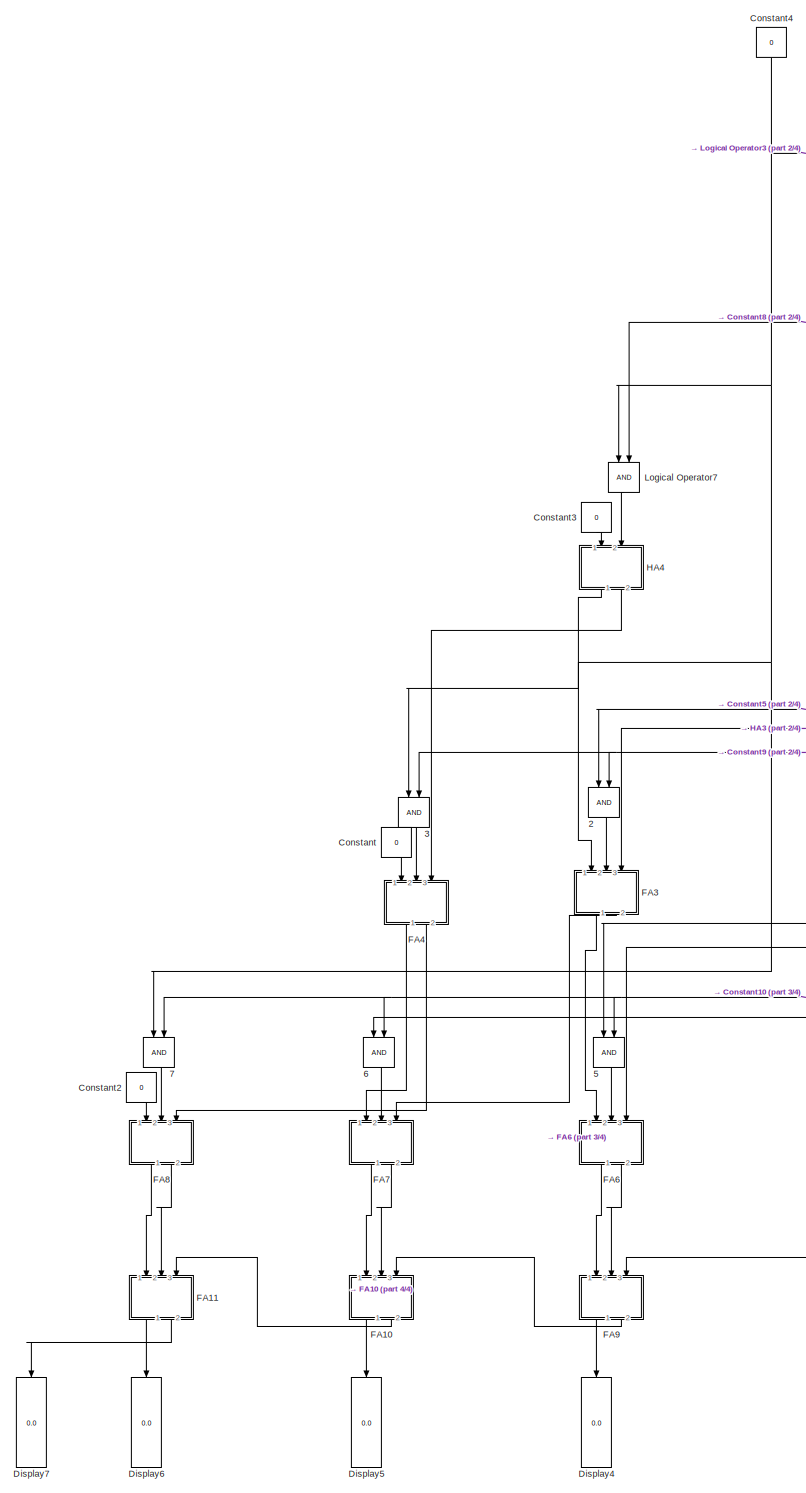
[diagram: root canvas - part 1/4, left side, full height]
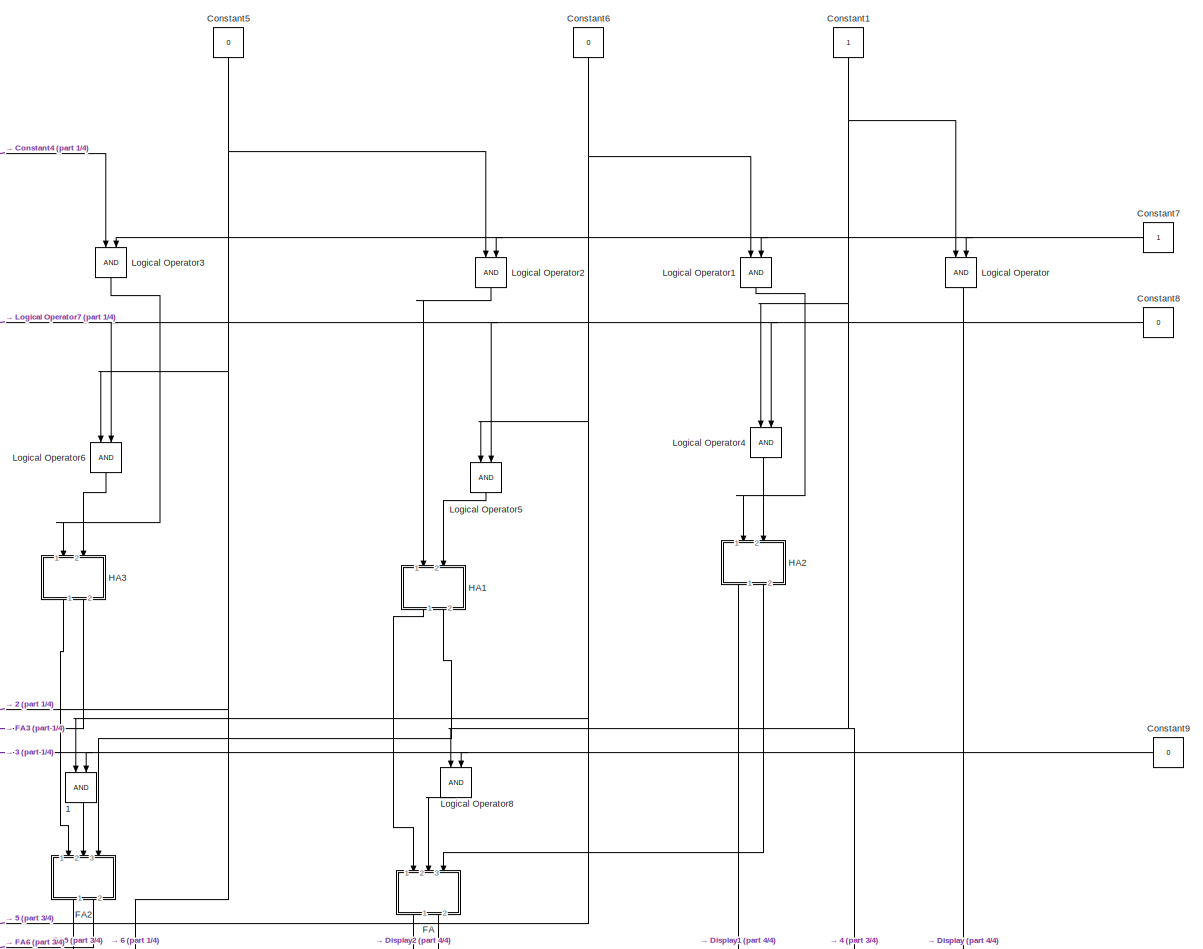
[diagram: root canvas - part 2/4, top right region]
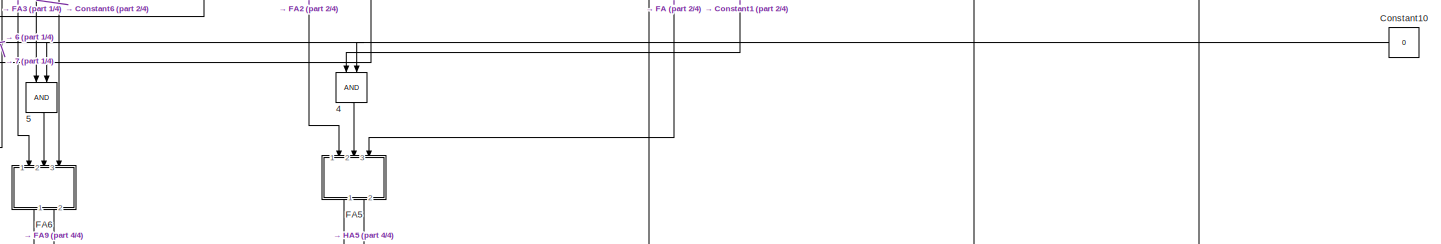
[diagram: root canvas - part 3/4, bottom center region]
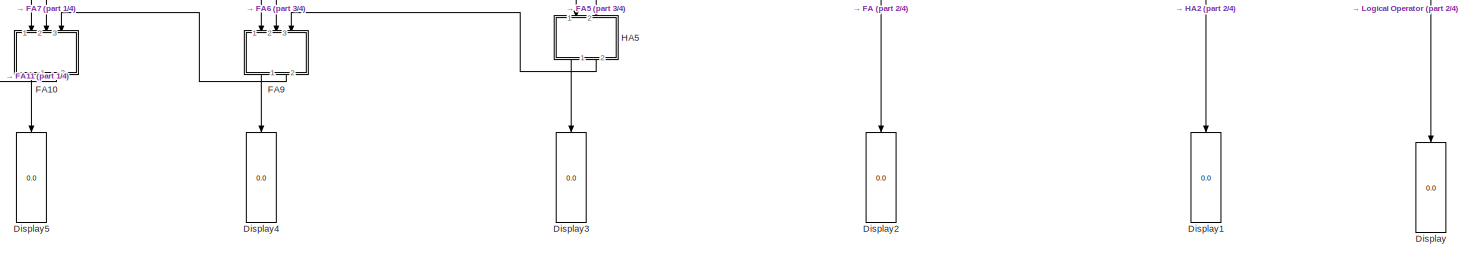
[diagram: root canvas - part 4/4, bottom center region]
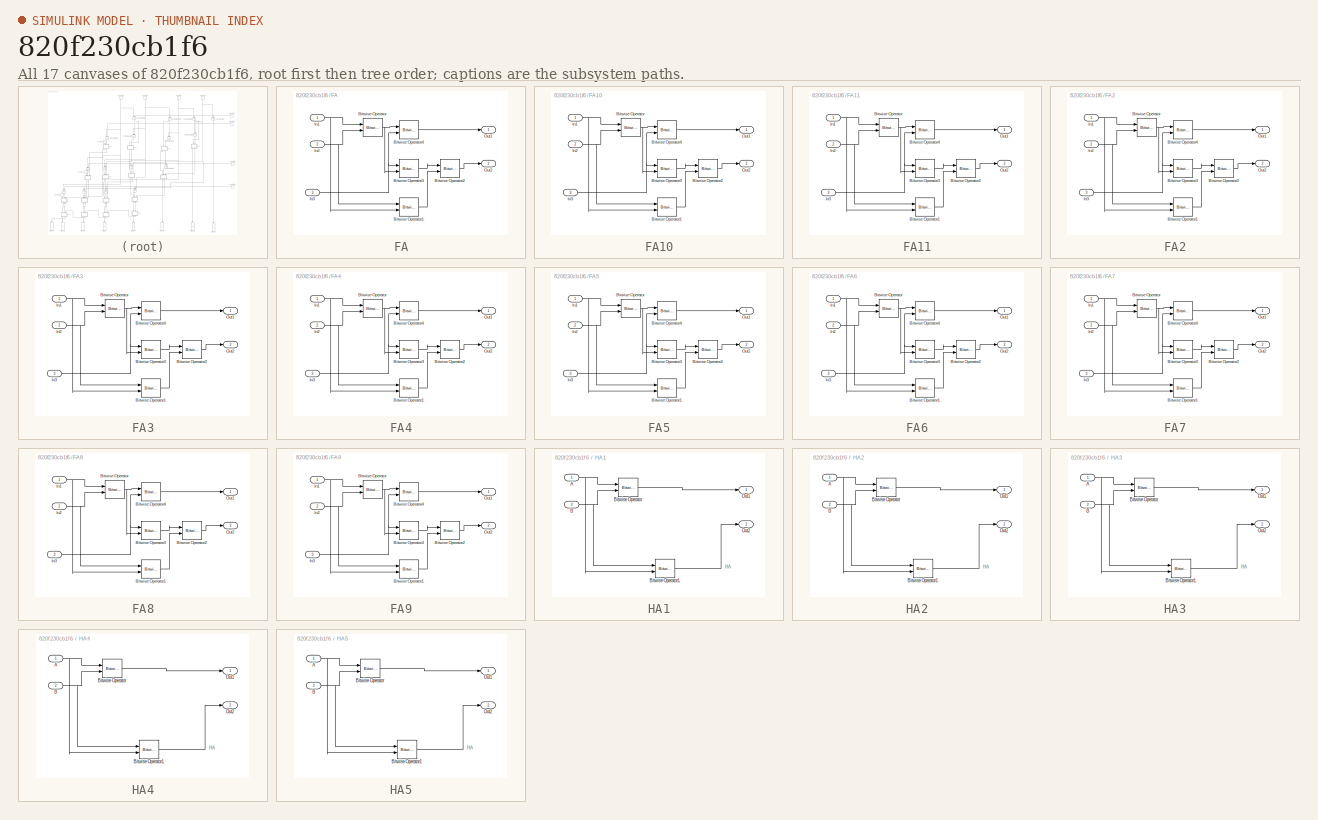
[diagram: thumbnail index - all 17 canvases of the model, root first then tree order]
MODEL slx_820f230cb1f6
KIND model
CONFIG AbsTol = auto
CONFIG FixedStep = auto
CONFIG MaxStep = auto
CONFIG MinStep = auto
CONFIG RelTol = 1e-3
CONFIG SampleTimeConstraint = Unconstrained
CONFIG Solver = ode45
CONFIG SolverMode = Auto
CONFIG SolverName = ode45
CONFIG StartTime = 0.0
CONFIG StopTime = 10.0
BLOCK [Logic]  1
  AllPortsSameDT = off
  OutDataTypeStr = boolean
  Ports = [2, 1]
BLOCK [Logic]  2
  AllPortsSameDT = off
  OutDataTypeStr = boolean
  Ports = [2, 1]
BLOCK [Logic]  3
  AllPortsSameDT = off
  OutDataTypeStr = boolean
  Ports = [2, 1]
BLOCK [Logic]  4
  AllPortsSameDT = off
  OutDataTypeStr = boolean
  Ports = [2, 1]
BLOCK [Logic]  5
  AllPortsSameDT = off
  OutDataTypeStr = boolean
  Ports = [2, 1]
BLOCK [Logic]  6
  AllPortsSameDT = off
  OutDataTypeStr = boolean
  Ports = [2, 1]
BLOCK [Logic]  7
  AllPortsSameDT = off
  OutDataTypeStr = boolean
  Ports = [2, 1]
BLOCK [Constant] Constant
  OutDataTypeStr = boolean
  Value = 0
BLOCK [Constant] Constant1
  OutDataTypeStr = boolean
BLOCK [Constant] Constant10
  OutDataTypeStr = boolean
  Value = 0
BLOCK [Constant] Constant2
  OutDataTypeStr = boolean
  Value = 0
BLOCK [Constant] Constant3
  OutDataTypeStr = boolean
  Value = 0
BLOCK [Constant] Constant4
  OutDataTypeStr = boolean
  Value = 0
BLOCK [Constant] Constant5
  OutDataTypeStr = boolean
  Value = 0
BLOCK [Constant] Constant6
  OutDataTypeStr = boolean
  Value = 0
BLOCK [Constant] Constant7
  OutDataTypeStr = boolean
BLOCK [Constant] Constant8
  OutDataTypeStr = boolean
  Value = 0
BLOCK [Constant] Constant9
  OutDataTypeStr = boolean
  Value = 0
BLOCK [Display] Display
  Decimation = 1
  Ports = [1]
BLOCK [Display] Display1
  Decimation = 1
  Ports = [1]
BLOCK [Display] Display2
  Decimation = 1
  Ports = [1]
BLOCK [Display] Display3
  Decimation = 1
  Ports = [1]
BLOCK [Display] Display4
  Decimation = 1
  Ports = [1]
BLOCK [Display] Display5
  Decimation = 1
  Ports = [1]
BLOCK [Display] Display6
  Decimation = 1
  Ports = [1]
BLOCK [Display] Display7
  Decimation = 1
  Ports = [1]
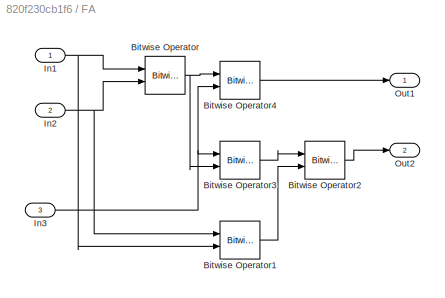
BLOCK [SubSystem] FA
  Ports = [3, 2]
  RequestExecContextInheritance = off
BLOCK [Reference] FA/Bitwise Operator  REF=simulink/Logic and Bit
Operations/Bitwise
Operator
  BitMask = bin2dec('11011001')
  BitMaskRealWorld = Stored Integer
  NumInputPorts = 2
  Ports = [2, 1]
  SourceBlock = simulink/Logic and Bit\nOperations/Bitwise\nOperator
  SourceType = Bitwise Operator
  UseBitMask = off
  logicop = XOR
BLOCK [Reference] FA/Bitwise Operator1  REF=simulink/Logic and Bit
Operations/Bitwise
Operator
  BitMask = bin2dec('11011001')
  BitMaskRealWorld = Stored Integer
  NumInputPorts = 2
  Ports = [2, 1]
  SourceBlock = simulink/Logic and Bit\nOperations/Bitwise\nOperator
  SourceType = Bitwise Operator
  UseBitMask = off
  logicop = AND
BLOCK [Reference] FA/Bitwise Operator2  REF=simulink/Logic and Bit
Operations/Bitwise
Operator
  BitMask = bin2dec('11011001')
  BitMaskRealWorld = Stored Integer
  NumInputPorts = 2
  Ports = [2, 1]
  SourceBlock = simulink/Logic and Bit\nOperations/Bitwise\nOperator
  SourceType = Bitwise Operator
  UseBitMask = off
  logicop = OR
BLOCK [Reference] FA/Bitwise Operator3  REF=simulink/Logic and Bit
Operations/Bitwise
Operator
  BitMask = bin2dec('11011001')
  BitMaskRealWorld = Stored Integer
  NumInputPorts = 2
  Ports = [2, 1]
  SourceBlock = simulink/Logic and Bit\nOperations/Bitwise\nOperator
  SourceType = Bitwise Operator
  UseBitMask = off
  logicop = AND
BLOCK [Reference] FA/Bitwise Operator4  REF=simulink/Logic and Bit
Operations/Bitwise
Operator
  BitMask = bin2dec('11011001')
  BitMaskRealWorld = Stored Integer
  NumInputPorts = 2
  Ports = [2, 1]
  SourceBlock = simulink/Logic and Bit\nOperations/Bitwise\nOperator
  SourceType = Bitwise Operator
  UseBitMask = off
  logicop = XOR
BLOCK [Inport] FA/In1
  IconDisplay = Port number
BLOCK [Inport] FA/In2
  IconDisplay = Port number
  Port = 2
BLOCK [Inport] FA/In3
  IconDisplay = Port number
  Port = 3
BLOCK [Outport] FA/Out1
  IconDisplay = Port number
BLOCK [Outport] FA/Out2
  IconDisplay = Port number
  Port = 2
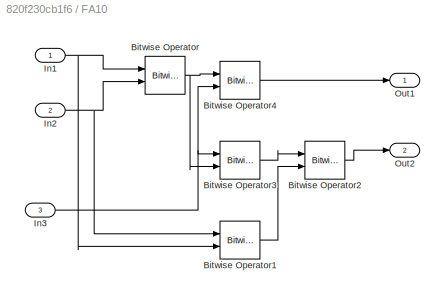
BLOCK [SubSystem] FA10
  Ports = [3, 2]
  RequestExecContextInheritance = off
BLOCK [Reference] FA10/Bitwise Operator  REF=simulink/Logic and Bit
Operations/Bitwise
Operator
  BitMask = bin2dec('11011001')
  BitMaskRealWorld = Stored Integer
  NumInputPorts = 2
  Ports = [2, 1]
  SourceBlock = simulink/Logic and Bit\nOperations/Bitwise\nOperator
  SourceType = Bitwise Operator
  UseBitMask = off
  logicop = XOR
BLOCK [Reference] FA10/Bitwise Operator1  REF=simulink/Logic and Bit
Operations/Bitwise
Operator
  BitMask = bin2dec('11011001')
  BitMaskRealWorld = Stored Integer
  NumInputPorts = 2
  Ports = [2, 1]
  SourceBlock = simulink/Logic and Bit\nOperations/Bitwise\nOperator
  SourceType = Bitwise Operator
  UseBitMask = off
  logicop = AND
BLOCK [Reference] FA10/Bitwise Operator2  REF=simulink/Logic and Bit
Operations/Bitwise
Operator
  BitMask = bin2dec('11011001')
  BitMaskRealWorld = Stored Integer
  NumInputPorts = 2
  Ports = [2, 1]
  SourceBlock = simulink/Logic and Bit\nOperations/Bitwise\nOperator
  SourceType = Bitwise Operator
  UseBitMask = off
  logicop = OR
BLOCK [Reference] FA10/Bitwise Operator3  REF=simulink/Logic and Bit
Operations/Bitwise
Operator
  BitMask = bin2dec('11011001')
  BitMaskRealWorld = Stored Integer
  NumInputPorts = 2
  Ports = [2, 1]
  SourceBlock = simulink/Logic and Bit\nOperations/Bitwise\nOperator
  SourceType = Bitwise Operator
  UseBitMask = off
  logicop = AND
BLOCK [Reference] FA10/Bitwise Operator4  REF=simulink/Logic and Bit
Operations/Bitwise
Operator
  BitMask = bin2dec('11011001')
  BitMaskRealWorld = Stored Integer
  NumInputPorts = 2
  Ports = [2, 1]
  SourceBlock = simulink/Logic and Bit\nOperations/Bitwise\nOperator
  SourceType = Bitwise Operator
  UseBitMask = off
  logicop = XOR
BLOCK [Inport] FA10/In1
  IconDisplay = Port number
BLOCK [Inport] FA10/In2
  IconDisplay = Port number
  Port = 2
BLOCK [Inport] FA10/In3
  IconDisplay = Port number
  Port = 3
BLOCK [Outport] FA10/Out1
  IconDisplay = Port number
BLOCK [Outport] FA10/Out2
  IconDisplay = Port number
  Port = 2
BLOCK [SubSystem] FA11
  Ports = [3, 2]
  RequestExecContextInheritance = off
BLOCK [Reference] FA11/Bitwise Operator  REF=simulink/Logic and Bit
Operations/Bitwise
Operator
  BitMask = bin2dec('11011001')
  BitMaskRealWorld = Stored Integer
  NumInputPorts = 2
  Ports = [2, 1]
  SourceBlock = simulink/Logic and Bit\nOperations/Bitwise\nOperator
  SourceType = Bitwise Operator
  UseBitMask = off
  logicop = XOR
BLOCK [Reference] FA11/Bitwise Operator1  REF=simulink/Logic and Bit
Operations/Bitwise
Operator
  BitMask = bin2dec('11011001')
  BitMaskRealWorld = Stored Integer
  NumInputPorts = 2
  Ports = [2, 1]
  SourceBlock = simulink/Logic and Bit\nOperations/Bitwise\nOperator
  SourceType = Bitwise Operator
  UseBitMask = off
  logicop = AND
BLOCK [Reference] FA11/Bitwise Operator2  REF=simulink/Logic and Bit
Operations/Bitwise
Operator
  BitMask = bin2dec('11011001')
  BitMaskRealWorld = Stored Integer
  NumInputPorts = 2
  Ports = [2, 1]
  SourceBlock = simulink/Logic and Bit\nOperations/Bitwise\nOperator
  SourceType = Bitwise Operator
  UseBitMask = off
  logicop = OR
BLOCK [Reference] FA11/Bitwise Operator3  REF=simulink/Logic and Bit
Operations/Bitwise
Operator
  BitMask = bin2dec('11011001')
  BitMaskRealWorld = Stored Integer
  NumInputPorts = 2
  Ports = [2, 1]
  SourceBlock = simulink/Logic and Bit\nOperations/Bitwise\nOperator
  SourceType = Bitwise Operator
  UseBitMask = off
  logicop = AND
BLOCK [Reference] FA11/Bitwise Operator4  REF=simulink/Logic and Bit
Operations/Bitwise
Operator
  BitMask = bin2dec('11011001')
  BitMaskRealWorld = Stored Integer
  NumInputPorts = 2
  Ports = [2, 1]
  SourceBlock = simulink/Logic and Bit\nOperations/Bitwise\nOperator
  SourceType = Bitwise Operator
  UseBitMask = off
  logicop = XOR
BLOCK [Inport] FA11/In1
  IconDisplay = Port number
BLOCK [Inport] FA11/In2
  IconDisplay = Port number
  Port = 2
BLOCK [Inport] FA11/In3
  IconDisplay = Port number
  Port = 3
BLOCK [Outport] FA11/Out1
  IconDisplay = Port number
BLOCK [Outport] FA11/Out2
  IconDisplay = Port number
  Port = 2
BLOCK [SubSystem] FA2
  Ports = [3, 2]
  RequestExecContextInheritance = off
BLOCK [Reference] FA2/Bitwise Operator  REF=simulink/Logic and Bit
Operations/Bitwise
Operator
  BitMask = bin2dec('11011001')
  BitMaskRealWorld = Stored Integer
  NumInputPorts = 2
  Ports = [2, 1]
  SourceBlock = simulink/Logic and Bit\nOperations/Bitwise\nOperator
  SourceType = Bitwise Operator
  UseBitMask = off
  logicop = XOR
BLOCK [Reference] FA2/Bitwise Operator1  REF=simulink/Logic and Bit
Operations/Bitwise
Operator
  BitMask = bin2dec('11011001')
  BitMaskRealWorld = Stored Integer
  NumInputPorts = 2
  Ports = [2, 1]
  SourceBlock = simulink/Logic and Bit\nOperations/Bitwise\nOperator
  SourceType = Bitwise Operator
  UseBitMask = off
  logicop = AND
BLOCK [Reference] FA2/Bitwise Operator2  REF=simulink/Logic and Bit
Operations/Bitwise
Operator
  BitMask = bin2dec('11011001')
  BitMaskRealWorld = Stored Integer
  NumInputPorts = 2
  Ports = [2, 1]
  SourceBlock = simulink/Logic and Bit\nOperations/Bitwise\nOperator
  SourceType = Bitwise Operator
  UseBitMask = off
  logicop = OR
BLOCK [Reference] FA2/Bitwise Operator3  REF=simulink/Logic and Bit
Operations/Bitwise
Operator
  BitMask = bin2dec('11011001')
  BitMaskRealWorld = Stored Integer
  NumInputPorts = 2
  Ports = [2, 1]
  SourceBlock = simulink/Logic and Bit\nOperations/Bitwise\nOperator
  SourceType = Bitwise Operator
  UseBitMask = off
  logicop = AND
BLOCK [Reference] FA2/Bitwise Operator4  REF=simulink/Logic and Bit
Operations/Bitwise
Operator
  BitMask = bin2dec('11011001')
  BitMaskRealWorld = Stored Integer
  NumInputPorts = 2
  Ports = [2, 1]
  SourceBlock = simulink/Logic and Bit\nOperations/Bitwise\nOperator
  SourceType = Bitwise Operator
  UseBitMask = off
  logicop = XOR
BLOCK [Inport] FA2/In1
  IconDisplay = Port number
BLOCK [Inport] FA2/In2
  IconDisplay = Port number
  Port = 2
BLOCK [Inport] FA2/In3
  IconDisplay = Port number
  Port = 3
BLOCK [Outport] FA2/Out1
  IconDisplay = Port number
BLOCK [Outport] FA2/Out2
  IconDisplay = Port number
  Port = 2
BLOCK [SubSystem] FA3
  Ports = [3, 2]
  RequestExecContextInheritance = off
BLOCK [Reference] FA3/Bitwise Operator  REF=simulink/Logic and Bit
Operations/Bitwise
Operator
  BitMask = bin2dec('11011001')
  BitMaskRealWorld = Stored Integer
  NumInputPorts = 2
  Ports = [2, 1]
  SourceBlock = simulink/Logic and Bit\nOperations/Bitwise\nOperator
  SourceType = Bitwise Operator
  UseBitMask = off
  logicop = XOR
BLOCK [Reference] FA3/Bitwise Operator1  REF=simulink/Logic and Bit
Operations/Bitwise
Operator
  BitMask = bin2dec('11011001')
  BitMaskRealWorld = Stored Integer
  NumInputPorts = 2
  Ports = [2, 1]
  SourceBlock = simulink/Logic and Bit\nOperations/Bitwise\nOperator
  SourceType = Bitwise Operator
  UseBitMask = off
  logicop = AND
BLOCK [Reference] FA3/Bitwise Operator2  REF=simulink/Logic and Bit
Operations/Bitwise
Operator
  BitMask = bin2dec('11011001')
  BitMaskRealWorld = Stored Integer
  NumInputPorts = 2
  Ports = [2, 1]
  SourceBlock = simulink/Logic and Bit\nOperations/Bitwise\nOperator
  SourceType = Bitwise Operator
  UseBitMask = off
  logicop = OR
BLOCK [Reference] FA3/Bitwise Operator3  REF=simulink/Logic and Bit
Operations/Bitwise
Operator
  BitMask = bin2dec('11011001')
  BitMaskRealWorld = Stored Integer
  NumInputPorts = 2
  Ports = [2, 1]
  SourceBlock = simulink/Logic and Bit\nOperations/Bitwise\nOperator
  SourceType = Bitwise Operator
  UseBitMask = off
  logicop = AND
BLOCK [Reference] FA3/Bitwise Operator4  REF=simulink/Logic and Bit
Operations/Bitwise
Operator
  BitMask = bin2dec('11011001')
  BitMaskRealWorld = Stored Integer
  NumInputPorts = 2
  Ports = [2, 1]
  SourceBlock = simulink/Logic and Bit\nOperations/Bitwise\nOperator
  SourceType = Bitwise Operator
  UseBitMask = off
  logicop = XOR
BLOCK [Inport] FA3/In1
  IconDisplay = Port number
BLOCK [Inport] FA3/In2
  IconDisplay = Port number
  Port = 2
BLOCK [Inport] FA3/In3
  IconDisplay = Port number
  Port = 3
BLOCK [Outport] FA3/Out1
  IconDisplay = Port number
BLOCK [Outport] FA3/Out2
  IconDisplay = Port number
  Port = 2
BLOCK [SubSystem] FA4
  Ports = [3, 2]
  RequestExecContextInheritance = off
BLOCK [Reference] FA4/Bitwise Operator  REF=simulink/Logic and Bit
Operations/Bitwise
Operator
  BitMask = bin2dec('11011001')
  BitMaskRealWorld = Stored Integer
  NumInputPorts = 2
  Ports = [2, 1]
  SourceBlock = simulink/Logic and Bit\nOperations/Bitwise\nOperator
  SourceType = Bitwise Operator
  UseBitMask = off
  logicop = XOR
BLOCK [Reference] FA4/Bitwise Operator1  REF=simulink/Logic and Bit
Operations/Bitwise
Operator
  BitMask = bin2dec('11011001')
  BitMaskRealWorld = Stored Integer
  NumInputPorts = 2
  Ports = [2, 1]
  SourceBlock = simulink/Logic and Bit\nOperations/Bitwise\nOperator
  SourceType = Bitwise Operator
  UseBitMask = off
  logicop = AND
BLOCK [Reference] FA4/Bitwise Operator2  REF=simulink/Logic and Bit
Operations/Bitwise
Operator
  BitMask = bin2dec('11011001')
  BitMaskRealWorld = Stored Integer
  NumInputPorts = 2
  Ports = [2, 1]
  SourceBlock = simulink/Logic and Bit\nOperations/Bitwise\nOperator
  SourceType = Bitwise Operator
  UseBitMask = off
  logicop = OR
BLOCK [Reference] FA4/Bitwise Operator3  REF=simulink/Logic and Bit
Operations/Bitwise
Operator
  BitMask = bin2dec('11011001')
  BitMaskRealWorld = Stored Integer
  NumInputPorts = 2
  Ports = [2, 1]
  SourceBlock = simulink/Logic and Bit\nOperations/Bitwise\nOperator
  SourceType = Bitwise Operator
  UseBitMask = off
  logicop = AND
BLOCK [Reference] FA4/Bitwise Operator4  REF=simulink/Logic and Bit
Operations/Bitwise
Operator
  BitMask = bin2dec('11011001')
  BitMaskRealWorld = Stored Integer
  NumInputPorts = 2
  Ports = [2, 1]
  SourceBlock = simulink/Logic and Bit\nOperations/Bitwise\nOperator
  SourceType = Bitwise Operator
  UseBitMask = off
  logicop = XOR
BLOCK [Inport] FA4/In1
  IconDisplay = Port number
BLOCK [Inport] FA4/In2
  IconDisplay = Port number
  Port = 2
BLOCK [Inport] FA4/In3
  IconDisplay = Port number
  Port = 3
BLOCK [Outport] FA4/Out1
  IconDisplay = Port number
BLOCK [Outport] FA4/Out2
  IconDisplay = Port number
  Port = 2
BLOCK [SubSystem] FA5
  Ports = [3, 2]
  RequestExecContextInheritance = off
BLOCK [Reference] FA5/Bitwise Operator  REF=simulink/Logic and Bit
Operations/Bitwise
Operator
  BitMask = bin2dec('11011001')
  BitMaskRealWorld = Stored Integer
  NumInputPorts = 2
  Ports = [2, 1]
  SourceBlock = simulink/Logic and Bit\nOperations/Bitwise\nOperator
  SourceType = Bitwise Operator
  UseBitMask = off
  logicop = XOR
BLOCK [Reference] FA5/Bitwise Operator1  REF=simulink/Logic and Bit
Operations/Bitwise
Operator
  BitMask = bin2dec('11011001')
  BitMaskRealWorld = Stored Integer
  NumInputPorts = 2
  Ports = [2, 1]
  SourceBlock = simulink/Logic and Bit\nOperations/Bitwise\nOperator
  SourceType = Bitwise Operator
  UseBitMask = off
  logicop = AND
BLOCK [Reference] FA5/Bitwise Operator2  REF=simulink/Logic and Bit
Operations/Bitwise
Operator
  BitMask = bin2dec('11011001')
  BitMaskRealWorld = Stored Integer
  NumInputPorts = 2
  Ports = [2, 1]
  SourceBlock = simulink/Logic and Bit\nOperations/Bitwise\nOperator
  SourceType = Bitwise Operator
  UseBitMask = off
  logicop = OR
BLOCK [Reference] FA5/Bitwise Operator3  REF=simulink/Logic and Bit
Operations/Bitwise
Operator
  BitMask = bin2dec('11011001')
  BitMaskRealWorld = Stored Integer
  NumInputPorts = 2
  Ports = [2, 1]
  SourceBlock = simulink/Logic and Bit\nOperations/Bitwise\nOperator
  SourceType = Bitwise Operator
  UseBitMask = off
  logicop = AND
BLOCK [Reference] FA5/Bitwise Operator4  REF=simulink/Logic and Bit
Operations/Bitwise
Operator
  BitMask = bin2dec('11011001')
  BitMaskRealWorld = Stored Integer
  NumInputPorts = 2
  Ports = [2, 1]
  SourceBlock = simulink/Logic and Bit\nOperations/Bitwise\nOperator
  SourceType = Bitwise Operator
  UseBitMask = off
  logicop = XOR
BLOCK [Inport] FA5/In1
  IconDisplay = Port number
BLOCK [Inport] FA5/In2
  IconDisplay = Port number
  Port = 2
BLOCK [Inport] FA5/In3
  IconDisplay = Port number
  Port = 3
BLOCK [Outport] FA5/Out1
  IconDisplay = Port number
BLOCK [Outport] FA5/Out2
  IconDisplay = Port number
  Port = 2
BLOCK [SubSystem] FA6
  Ports = [3, 2]
  RequestExecContextInheritance = off
BLOCK [Reference] FA6/Bitwise Operator  REF=simulink/Logic and Bit
Operations/Bitwise
Operator
  BitMask = bin2dec('11011001')
  BitMaskRealWorld = Stored Integer
  NumInputPorts = 2
  Ports = [2, 1]
  SourceBlock = simulink/Logic and Bit\nOperations/Bitwise\nOperator
  SourceType = Bitwise Operator
  UseBitMask = off
  logicop = XOR
BLOCK [Reference] FA6/Bitwise Operator1  REF=simulink/Logic and Bit
Operations/Bitwise
Operator
  BitMask = bin2dec('11011001')
  BitMaskRealWorld = Stored Integer
  NumInputPorts = 2
  Ports = [2, 1]
  SourceBlock = simulink/Logic and Bit\nOperations/Bitwise\nOperator
  SourceType = Bitwise Operator
  UseBitMask = off
  logicop = AND
BLOCK [Reference] FA6/Bitwise Operator2  REF=simulink/Logic and Bit
Operations/Bitwise
Operator
  BitMask = bin2dec('11011001')
  BitMaskRealWorld = Stored Integer
  NumInputPorts = 2
  Ports = [2, 1]
  SourceBlock = simulink/Logic and Bit\nOperations/Bitwise\nOperator
  SourceType = Bitwise Operator
  UseBitMask = off
  logicop = OR
BLOCK [Reference] FA6/Bitwise Operator3  REF=simulink/Logic and Bit
Operations/Bitwise
Operator
  BitMask = bin2dec('11011001')
  BitMaskRealWorld = Stored Integer
  NumInputPorts = 2
  Ports = [2, 1]
  SourceBlock = simulink/Logic and Bit\nOperations/Bitwise\nOperator
  SourceType = Bitwise Operator
  UseBitMask = off
  logicop = AND
BLOCK [Reference] FA6/Bitwise Operator4  REF=simulink/Logic and Bit
Operations/Bitwise
Operator
  BitMask = bin2dec('11011001')
  BitMaskRealWorld = Stored Integer
  NumInputPorts = 2
  Ports = [2, 1]
  SourceBlock = simulink/Logic and Bit\nOperations/Bitwise\nOperator
  SourceType = Bitwise Operator
  UseBitMask = off
  logicop = XOR
BLOCK [Inport] FA6/In1
  IconDisplay = Port number
BLOCK [Inport] FA6/In2
  IconDisplay = Port number
  Port = 2
BLOCK [Inport] FA6/In3
  IconDisplay = Port number
  Port = 3
BLOCK [Outport] FA6/Out1
  IconDisplay = Port number
BLOCK [Outport] FA6/Out2
  IconDisplay = Port number
  Port = 2
BLOCK [SubSystem] FA7
  Ports = [3, 2]
  RequestExecContextInheritance = off
BLOCK [Reference] FA7/Bitwise Operator  REF=simulink/Logic and Bit
Operations/Bitwise
Operator
  BitMask = bin2dec('11011001')
  BitMaskRealWorld = Stored Integer
  NumInputPorts = 2
  Ports = [2, 1]
  SourceBlock = simulink/Logic and Bit\nOperations/Bitwise\nOperator
  SourceType = Bitwise Operator
  UseBitMask = off
  logicop = XOR
BLOCK [Reference] FA7/Bitwise Operator1  REF=simulink/Logic and Bit
Operations/Bitwise
Operator
  BitMask = bin2dec('11011001')
  BitMaskRealWorld = Stored Integer
  NumInputPorts = 2
  Ports = [2, 1]
  SourceBlock = simulink/Logic and Bit\nOperations/Bitwise\nOperator
  SourceType = Bitwise Operator
  UseBitMask = off
  logicop = AND
BLOCK [Reference] FA7/Bitwise Operator2  REF=simulink/Logic and Bit
Operations/Bitwise
Operator
  BitMask = bin2dec('11011001')
  BitMaskRealWorld = Stored Integer
  NumInputPorts = 2
  Ports = [2, 1]
  SourceBlock = simulink/Logic and Bit\nOperations/Bitwise\nOperator
  SourceType = Bitwise Operator
  UseBitMask = off
  logicop = OR
BLOCK [Reference] FA7/Bitwise Operator3  REF=simulink/Logic and Bit
Operations/Bitwise
Operator
  BitMask = bin2dec('11011001')
  BitMaskRealWorld = Stored Integer
  NumInputPorts = 2
  Ports = [2, 1]
  SourceBlock = simulink/Logic and Bit\nOperations/Bitwise\nOperator
  SourceType = Bitwise Operator
  UseBitMask = off
  logicop = AND
BLOCK [Reference] FA7/Bitwise Operator4  REF=simulink/Logic and Bit
Operations/Bitwise
Operator
  BitMask = bin2dec('11011001')
  BitMaskRealWorld = Stored Integer
  NumInputPorts = 2
  Ports = [2, 1]
  SourceBlock = simulink/Logic and Bit\nOperations/Bitwise\nOperator
  SourceType = Bitwise Operator
  UseBitMask = off
  logicop = XOR
BLOCK [Inport] FA7/In1
  IconDisplay = Port number
BLOCK [Inport] FA7/In2
  IconDisplay = Port number
  Port = 2
BLOCK [Inport] FA7/In3
  IconDisplay = Port number
  Port = 3
BLOCK [Outport] FA7/Out1
  IconDisplay = Port number
BLOCK [Outport] FA7/Out2
  IconDisplay = Port number
  Port = 2
BLOCK [SubSystem] FA8
  Ports = [3, 2]
  RequestExecContextInheritance = off
BLOCK [Reference] FA8/Bitwise Operator  REF=simulink/Logic and Bit
Operations/Bitwise
Operator
  BitMask = bin2dec('11011001')
  BitMaskRealWorld = Stored Integer
  NumInputPorts = 2
  Ports = [2, 1]
  SourceBlock = simulink/Logic and Bit\nOperations/Bitwise\nOperator
  SourceType = Bitwise Operator
  UseBitMask = off
  logicop = XOR
BLOCK [Reference] FA8/Bitwise Operator1  REF=simulink/Logic and Bit
Operations/Bitwise
Operator
  BitMask = bin2dec('11011001')
  BitMaskRealWorld = Stored Integer
  NumInputPorts = 2
  Ports = [2, 1]
  SourceBlock = simulink/Logic and Bit\nOperations/Bitwise\nOperator
  SourceType = Bitwise Operator
  UseBitMask = off
  logicop = AND
BLOCK [Reference] FA8/Bitwise Operator2  REF=simulink/Logic and Bit
Operations/Bitwise
Operator
  BitMask = bin2dec('11011001')
  BitMaskRealWorld = Stored Integer
  NumInputPorts = 2
  Ports = [2, 1]
  SourceBlock = simulink/Logic and Bit\nOperations/Bitwise\nOperator
  SourceType = Bitwise Operator
  UseBitMask = off
  logicop = OR
BLOCK [Reference] FA8/Bitwise Operator3  REF=simulink/Logic and Bit
Operations/Bitwise
Operator
  BitMask = bin2dec('11011001')
  BitMaskRealWorld = Stored Integer
  NumInputPorts = 2
  Ports = [2, 1]
  SourceBlock = simulink/Logic and Bit\nOperations/Bitwise\nOperator
  SourceType = Bitwise Operator
  UseBitMask = off
  logicop = AND
BLOCK [Reference] FA8/Bitwise Operator4  REF=simulink/Logic and Bit
Operations/Bitwise
Operator
  BitMask = bin2dec('11011001')
  BitMaskRealWorld = Stored Integer
  NumInputPorts = 2
  Ports = [2, 1]
  SourceBlock = simulink/Logic and Bit\nOperations/Bitwise\nOperator
  SourceType = Bitwise Operator
  UseBitMask = off
  logicop = XOR
BLOCK [Inport] FA8/In1
  IconDisplay = Port number
BLOCK [Inport] FA8/In2
  IconDisplay = Port number
  Port = 2
BLOCK [Inport] FA8/In3
  IconDisplay = Port number
  Port = 3
BLOCK [Outport] FA8/Out1
  IconDisplay = Port number
BLOCK [Outport] FA8/Out2
  IconDisplay = Port number
  Port = 2
BLOCK [SubSystem] FA9
  Ports = [3, 2]
  RequestExecContextInheritance = off
BLOCK [Reference] FA9/Bitwise Operator  REF=simulink/Logic and Bit
Operations/Bitwise
Operator
  BitMask = bin2dec('11011001')
  BitMaskRealWorld = Stored Integer
  NumInputPorts = 2
  Ports = [2, 1]
  SourceBlock = simulink/Logic and Bit\nOperations/Bitwise\nOperator
  SourceType = Bitwise Operator
  UseBitMask = off
  logicop = XOR
BLOCK [Reference] FA9/Bitwise Operator1  REF=simulink/Logic and Bit
Operations/Bitwise
Operator
  BitMask = bin2dec('11011001')
  BitMaskRealWorld = Stored Integer
  NumInputPorts = 2
  Ports = [2, 1]
  SourceBlock = simulink/Logic and Bit\nOperations/Bitwise\nOperator
  SourceType = Bitwise Operator
  UseBitMask = off
  logicop = AND
BLOCK [Reference] FA9/Bitwise Operator2  REF=simulink/Logic and Bit
Operations/Bitwise
Operator
  BitMask = bin2dec('11011001')
  BitMaskRealWorld = Stored Integer
  NumInputPorts = 2
  Ports = [2, 1]
  SourceBlock = simulink/Logic and Bit\nOperations/Bitwise\nOperator
  SourceType = Bitwise Operator
  UseBitMask = off
  logicop = OR
BLOCK [Reference] FA9/Bitwise Operator3  REF=simulink/Logic and Bit
Operations/Bitwise
Operator
  BitMask = bin2dec('11011001')
  BitMaskRealWorld = Stored Integer
  NumInputPorts = 2
  Ports = [2, 1]
  SourceBlock = simulink/Logic and Bit\nOperations/Bitwise\nOperator
  SourceType = Bitwise Operator
  UseBitMask = off
  logicop = AND
BLOCK [Reference] FA9/Bitwise Operator4  REF=simulink/Logic and Bit
Operations/Bitwise
Operator
  BitMask = bin2dec('11011001')
  BitMaskRealWorld = Stored Integer
  NumInputPorts = 2
  Ports = [2, 1]
  SourceBlock = simulink/Logic and Bit\nOperations/Bitwise\nOperator
  SourceType = Bitwise Operator
  UseBitMask = off
  logicop = XOR
BLOCK [Inport] FA9/In1
  IconDisplay = Port number
BLOCK [Inport] FA9/In2
  IconDisplay = Port number
  Port = 2
BLOCK [Inport] FA9/In3
  IconDisplay = Port number
  Port = 3
BLOCK [Outport] FA9/Out1
  IconDisplay = Port number
BLOCK [Outport] FA9/Out2
  IconDisplay = Port number
  Port = 2
BLOCK [SubSystem] HA1
  Ports = [2, 2]
  RequestExecContextInheritance = off
BLOCK [Inport] HA1/A
  IconDisplay = Port number
BLOCK [Inport] HA1/B
  IconDisplay = Port number
  Port = 2
BLOCK [Reference] HA1/Bitwise Operator  REF=simulink/Logic and Bit
Operations/Bitwise
Operator
  BitMask = bin2dec('11011001')
  BitMaskRealWorld = Stored Integer
  NumInputPorts = 2
  Ports = [2, 1]
  SourceBlock = simulink/Logic and Bit\nOperations/Bitwise\nOperator
  SourceType = Bitwise Operator
  UseBitMask = off
  logicop = XOR
BLOCK [Reference] HA1/Bitwise Operator1  REF=simulink/Logic and Bit
Operations/Bitwise
Operator
  BitMask = bin2dec('11011001')
  BitMaskRealWorld = Stored Integer
  NumInputPorts = 2
  Ports = [2, 1]
  SourceBlock = simulink/Logic and Bit\nOperations/Bitwise\nOperator
  SourceType = Bitwise Operator
  UseBitMask = off
  logicop = AND
BLOCK [Outport] HA1/Out1
  IconDisplay = Port number
BLOCK [Outport] HA1/Out2
  IconDisplay = Port number
  Port = 2
BLOCK [SubSystem] HA2
  Ports = [2, 2]
  RequestExecContextInheritance = off
BLOCK [Inport] HA2/A
  IconDisplay = Port number
BLOCK [Inport] HA2/B
  IconDisplay = Port number
  Port = 2
BLOCK [Reference] HA2/Bitwise Operator  REF=simulink/Logic and Bit
Operations/Bitwise
Operator
  BitMask = bin2dec('11011001')
  BitMaskRealWorld = Stored Integer
  NumInputPorts = 2
  Ports = [2, 1]
  SourceBlock = simulink/Logic and Bit\nOperations/Bitwise\nOperator
  SourceType = Bitwise Operator
  UseBitMask = off
  logicop = XOR
BLOCK [Reference] HA2/Bitwise Operator1  REF=simulink/Logic and Bit
Operations/Bitwise
Operator
  BitMask = bin2dec('11011001')
  BitMaskRealWorld = Stored Integer
  NumInputPorts = 2
  Ports = [2, 1]
  SourceBlock = simulink/Logic and Bit\nOperations/Bitwise\nOperator
  SourceType = Bitwise Operator
  UseBitMask = off
  logicop = AND
BLOCK [Outport] HA2/Out1
  IconDisplay = Port number
BLOCK [Outport] HA2/Out2
  IconDisplay = Port number
  Port = 2
BLOCK [SubSystem] HA3
  Ports = [2, 2]
  RequestExecContextInheritance = off
BLOCK [Inport] HA3/A
  IconDisplay = Port number
BLOCK [Inport] HA3/B
  IconDisplay = Port number
  Port = 2
BLOCK [Reference] HA3/Bitwise Operator  REF=simulink/Logic and Bit
Operations/Bitwise
Operator
  BitMask = bin2dec('11011001')
  BitMaskRealWorld = Stored Integer
  NumInputPorts = 2
  Ports = [2, 1]
  SourceBlock = simulink/Logic and Bit\nOperations/Bitwise\nOperator
  SourceType = Bitwise Operator
  UseBitMask = off
  logicop = XOR
BLOCK [Reference] HA3/Bitwise Operator1  REF=simulink/Logic and Bit
Operations/Bitwise
Operator
  BitMask = bin2dec('11011001')
  BitMaskRealWorld = Stored Integer
  NumInputPorts = 2
  Ports = [2, 1]
  SourceBlock = simulink/Logic and Bit\nOperations/Bitwise\nOperator
  SourceType = Bitwise Operator
  UseBitMask = off
  logicop = AND
BLOCK [Outport] HA3/Out1
  IconDisplay = Port number
BLOCK [Outport] HA3/Out2
  IconDisplay = Port number
  Port = 2
BLOCK [SubSystem] HA4
  Ports = [2, 2]
  RequestExecContextInheritance = off
BLOCK [Inport] HA4/A
  IconDisplay = Port number
BLOCK [Inport] HA4/B
  IconDisplay = Port number
  Port = 2
BLOCK [Reference] HA4/Bitwise Operator  REF=simulink/Logic and Bit
Operations/Bitwise
Operator
  BitMask = bin2dec('11011001')
  BitMaskRealWorld = Stored Integer
  NumInputPorts = 2
  Ports = [2, 1]
  SourceBlock = simulink/Logic and Bit\nOperations/Bitwise\nOperator
  SourceType = Bitwise Operator
  UseBitMask = off
  logicop = XOR
BLOCK [Reference] HA4/Bitwise Operator1  REF=simulink/Logic and Bit
Operations/Bitwise
Operator
  BitMask = bin2dec('11011001')
  BitMaskRealWorld = Stored Integer
  NumInputPorts = 2
  Ports = [2, 1]
  SourceBlock = simulink/Logic and Bit\nOperations/Bitwise\nOperator
  SourceType = Bitwise Operator
  UseBitMask = off
  logicop = AND
BLOCK [Outport] HA4/Out1
  IconDisplay = Port number
BLOCK [Outport] HA4/Out2
  IconDisplay = Port number
  Port = 2
BLOCK [SubSystem] HA5
  Ports = [2, 2]
  RequestExecContextInheritance = off
BLOCK [Inport] HA5/A
  IconDisplay = Port number
BLOCK [Inport] HA5/B
  IconDisplay = Port number
  Port = 2
BLOCK [Reference] HA5/Bitwise Operator  REF=simulink/Logic and Bit
Operations/Bitwise
Operator
  BitMask = bin2dec('11011001')
  BitMaskRealWorld = Stored Integer
  NumInputPorts = 2
  Ports = [2, 1]
  SourceBlock = simulink/Logic and Bit\nOperations/Bitwise\nOperator
  SourceType = Bitwise Operator
  UseBitMask = off
  logicop = XOR
BLOCK [Reference] HA5/Bitwise Operator1  REF=simulink/Logic and Bit
Operations/Bitwise
Operator
  BitMask = bin2dec('11011001')
  BitMaskRealWorld = Stored Integer
  NumInputPorts = 2
  Ports = [2, 1]
  SourceBlock = simulink/Logic and Bit\nOperations/Bitwise\nOperator
  SourceType = Bitwise Operator
  UseBitMask = off
  logicop = AND
BLOCK [Outport] HA5/Out1
  IconDisplay = Port number
BLOCK [Outport] HA5/Out2
  IconDisplay = Port number
  Port = 2
BLOCK [Logic] Logical Operator
  AllPortsSameDT = off
  OutDataTypeStr = boolean
  Ports = [2, 1]
BLOCK [Logic] Logical Operator1
  AllPortsSameDT = off
  OutDataTypeStr = boolean
  Ports = [2, 1]
BLOCK [Logic] Logical Operator2
  AllPortsSameDT = off
  OutDataTypeStr = boolean
  Ports = [2, 1]
BLOCK [Logic] Logical Operator3
  AllPortsSameDT = off
  OutDataTypeStr = boolean
  Ports = [2, 1]
BLOCK [Logic] Logical Operator4
  AllPortsSameDT = off
  OutDataTypeStr = boolean
  Ports = [2, 1]
BLOCK [Logic] Logical Operator5
  AllPortsSameDT = off
  OutDataTypeStr = boolean
  Ports = [2, 1]
BLOCK [Logic] Logical Operator6
  AllPortsSameDT = off
  OutDataTypeStr = boolean
  Ports = [2, 1]
BLOCK [Logic] Logical Operator7
  AllPortsSameDT = off
  OutDataTypeStr = boolean
  Ports = [2, 1]
BLOCK [Logic] Logical Operator8
  AllPortsSameDT = off
  OutDataTypeStr = boolean
  Ports = [2, 1]
ANNOTATION HA1: HA
ANNOTATION HA2: HA
ANNOTATION HA3: HA
ANNOTATION HA4: HA
ANNOTATION HA5: HA
LINE  1:1 -> FA2:2
LINE  2:1 -> FA3:2
LINE  3:1 -> FA4:2
LINE  4:1 -> FA5:2
LINE  5:1 -> FA6:2
LINE  6:1 -> FA7:2
LINE  7:1 -> FA8:2
NET Constant10:1 ->  4:2,  5:2,  6:2,  7:2
NET Constant1:1 ->  4:1, Logical Operator4:1, Logical Operator8:1, Logical Operator:1
LINE Constant2:1 -> FA8:1
LINE Constant3:1 -> HA4:1
NET Constant4:1 ->  3:1,  7:1, Logical Operator3:1, Logical Operator7:1
NET Constant5:1 ->  2:1,  6:1, Logical Operator2:1, Logical Operator6:1
NET Constant6:1 ->  1:1,  5:1, Logical Operator1:1, Logical Operator5:1
NET Constant7:1 -> Logical Operator1:2, Logical Operator2:2, Logical Operator3:2, Logical Operator:2
NET Constant8:1 -> Logical Operator4:2, Logical Operator5:2, Logical Operator6:2, Logical Operator7:2
NET Constant9:1 ->  1:2,  2:2,  3:2, Logical Operator8:2
LINE Constant:1 -> FA4:1
LINE FA/Bitwise Operator1:1 -> FA/Bitwise Operator2:2
LINE FA/Bitwise Operator2:1 -> FA/Out2:1
LINE FA/Bitwise Operator3:1 -> FA/Bitwise Operator2:1
LINE FA/Bitwise Operator4:1 -> FA/Out1:1
NET FA/Bitwise Operator:1 -> FA/Bitwise Operator3:2, FA/Bitwise Operator4:1
NET FA/In1:1 -> FA/Bitwise Operator1:2, FA/Bitwise Operator:1
NET FA/In2:1 -> FA/Bitwise Operator1:1, FA/Bitwise Operator:2
NET FA/In3:1 -> FA/Bitwise Operator3:1, FA/Bitwise Operator4:2
LINE FA10/Bitwise Operator1:1 -> FA10/Bitwise Operator2:2
LINE FA10/Bitwise Operator2:1 -> FA10/Out2:1
LINE FA10/Bitwise Operator3:1 -> FA10/Bitwise Operator2:1
LINE FA10/Bitwise Operator4:1 -> FA10/Out1:1
NET FA10/Bitwise Operator:1 -> FA10/Bitwise Operator3:2, FA10/Bitwise Operator4:1
NET FA10/In1:1 -> FA10/Bitwise Operator1:2, FA10/Bitwise Operator:1
NET FA10/In2:1 -> FA10/Bitwise Operator1:1, FA10/Bitwise Operator:2
NET FA10/In3:1 -> FA10/Bitwise Operator3:1, FA10/Bitwise Operator4:2
LINE FA10:1 -> Display5:1
LINE FA10:2 -> FA11:3
LINE FA11/Bitwise Operator1:1 -> FA11/Bitwise Operator2:2
LINE FA11/Bitwise Operator2:1 -> FA11/Out2:1
LINE FA11/Bitwise Operator3:1 -> FA11/Bitwise Operator2:1
LINE FA11/Bitwise Operator4:1 -> FA11/Out1:1
NET FA11/Bitwise Operator:1 -> FA11/Bitwise Operator3:2, FA11/Bitwise Operator4:1
NET FA11/In1:1 -> FA11/Bitwise Operator1:2, FA11/Bitwise Operator:1
NET FA11/In2:1 -> FA11/Bitwise Operator1:1, FA11/Bitwise Operator:2
NET FA11/In3:1 -> FA11/Bitwise Operator3:1, FA11/Bitwise Operator4:2
LINE FA11:1 -> Display6:1
LINE FA11:2 -> Display7:1
LINE FA2/Bitwise Operator1:1 -> FA2/Bitwise Operator2:2
LINE FA2/Bitwise Operator2:1 -> FA2/Out2:1
LINE FA2/Bitwise Operator3:1 -> FA2/Bitwise Operator2:1
LINE FA2/Bitwise Operator4:1 -> FA2/Out1:1
NET FA2/Bitwise Operator:1 -> FA2/Bitwise Operator3:2, FA2/Bitwise Operator4:1
NET FA2/In1:1 -> FA2/Bitwise Operator1:2, FA2/Bitwise Operator:1
NET FA2/In2:1 -> FA2/Bitwise Operator1:1, FA2/Bitwise Operator:2
NET FA2/In3:1 -> FA2/Bitwise Operator3:1, FA2/Bitwise Operator4:2
LINE FA2:1 -> FA5:1
LINE FA2:2 -> FA6:3
LINE FA3/Bitwise Operator1:1 -> FA3/Bitwise Operator2:2
LINE FA3/Bitwise Operator2:1 -> FA3/Out2:1
LINE FA3/Bitwise Operator3:1 -> FA3/Bitwise Operator2:1
LINE FA3/Bitwise Operator4:1 -> FA3/Out1:1
NET FA3/Bitwise Operator:1 -> FA3/Bitwise Operator3:2, FA3/Bitwise Operator4:1
NET FA3/In1:1 -> FA3/Bitwise Operator1:2, FA3/Bitwise Operator:1
NET FA3/In2:1 -> FA3/Bitwise Operator1:1, FA3/Bitwise Operator:2
NET FA3/In3:1 -> FA3/Bitwise Operator3:1, FA3/Bitwise Operator4:2
LINE FA3:1 -> FA6:1
LINE FA3:2 -> FA7:3
LINE FA4/Bitwise Operator1:1 -> FA4/Bitwise Operator2:2
LINE FA4/Bitwise Operator2:1 -> FA4/Out2:1
LINE FA4/Bitwise Operator3:1 -> FA4/Bitwise Operator2:1
LINE FA4/Bitwise Operator4:1 -> FA4/Out1:1
NET FA4/Bitwise Operator:1 -> FA4/Bitwise Operator3:2, FA4/Bitwise Operator4:1
NET FA4/In1:1 -> FA4/Bitwise Operator1:2, FA4/Bitwise Operator:1
NET FA4/In2:1 -> FA4/Bitwise Operator1:1, FA4/Bitwise Operator:2
NET FA4/In3:1 -> FA4/Bitwise Operator3:1, FA4/Bitwise Operator4:2
LINE FA4:1 -> FA7:1
LINE FA4:2 -> FA8:3
LINE FA5/Bitwise Operator1:1 -> FA5/Bitwise Operator2:2
LINE FA5/Bitwise Operator2:1 -> FA5/Out2:1
LINE FA5/Bitwise Operator3:1 -> FA5/Bitwise Operator2:1
LINE FA5/Bitwise Operator4:1 -> FA5/Out1:1
NET FA5/Bitwise Operator:1 -> FA5/Bitwise Operator3:2, FA5/Bitwise Operator4:1
NET FA5/In1:1 -> FA5/Bitwise Operator1:2, FA5/Bitwise Operator:1
NET FA5/In2:1 -> FA5/Bitwise Operator1:1, FA5/Bitwise Operator:2
NET FA5/In3:1 -> FA5/Bitwise Operator3:1, FA5/Bitwise Operator4:2
LINE FA5:1 -> HA5:1
LINE FA5:2 -> HA5:2
LINE FA6/Bitwise Operator1:1 -> FA6/Bitwise Operator2:2
LINE FA6/Bitwise Operator2:1 -> FA6/Out2:1
LINE FA6/Bitwise Operator3:1 -> FA6/Bitwise Operator2:1
LINE FA6/Bitwise Operator4:1 -> FA6/Out1:1
NET FA6/Bitwise Operator:1 -> FA6/Bitwise Operator3:2, FA6/Bitwise Operator4:1
NET FA6/In1:1 -> FA6/Bitwise Operator1:2, FA6/Bitwise Operator:1
NET FA6/In2:1 -> FA6/Bitwise Operator1:1, FA6/Bitwise Operator:2
NET FA6/In3:1 -> FA6/Bitwise Operator3:1, FA6/Bitwise Operator4:2
LINE FA6:1 -> FA9:1
LINE FA6:2 -> FA9:2
LINE FA7/Bitwise Operator1:1 -> FA7/Bitwise Operator2:2
LINE FA7/Bitwise Operator2:1 -> FA7/Out2:1
LINE FA7/Bitwise Operator3:1 -> FA7/Bitwise Operator2:1
LINE FA7/Bitwise Operator4:1 -> FA7/Out1:1
NET FA7/Bitwise Operator:1 -> FA7/Bitwise Operator3:2, FA7/Bitwise Operator4:1
NET FA7/In1:1 -> FA7/Bitwise Operator1:2, FA7/Bitwise Operator:1
NET FA7/In2:1 -> FA7/Bitwise Operator1:1, FA7/Bitwise Operator:2
NET FA7/In3:1 -> FA7/Bitwise Operator3:1, FA7/Bitwise Operator4:2
LINE FA7:1 -> FA10:1
LINE FA7:2 -> FA10:2
LINE FA8/Bitwise Operator1:1 -> FA8/Bitwise Operator2:2
LINE FA8/Bitwise Operator2:1 -> FA8/Out2:1
LINE FA8/Bitwise Operator3:1 -> FA8/Bitwise Operator2:1
LINE FA8/Bitwise Operator4:1 -> FA8/Out1:1
NET FA8/Bitwise Operator:1 -> FA8/Bitwise Operator3:2, FA8/Bitwise Operator4:1
NET FA8/In1:1 -> FA8/Bitwise Operator1:2, FA8/Bitwise Operator:1
NET FA8/In2:1 -> FA8/Bitwise Operator1:1, FA8/Bitwise Operator:2
NET FA8/In3:1 -> FA8/Bitwise Operator3:1, FA8/Bitwise Operator4:2
LINE FA8:1 -> FA11:1
LINE FA8:2 -> FA11:2
LINE FA9/Bitwise Operator1:1 -> FA9/Bitwise Operator2:2
LINE FA9/Bitwise Operator2:1 -> FA9/Out2:1
LINE FA9/Bitwise Operator3:1 -> FA9/Bitwise Operator2:1
LINE FA9/Bitwise Operator4:1 -> FA9/Out1:1
NET FA9/Bitwise Operator:1 -> FA9/Bitwise Operator3:2, FA9/Bitwise Operator4:1
NET FA9/In1:1 -> FA9/Bitwise Operator1:2, FA9/Bitwise Operator:1
NET FA9/In2:1 -> FA9/Bitwise Operator1:1, FA9/Bitwise Operator:2
NET FA9/In3:1 -> FA9/Bitwise Operator3:1, FA9/Bitwise Operator4:2
LINE FA9:1 -> Display4:1
LINE FA9:2 -> FA10:3
LINE FA:1 -> Display2:1
LINE FA:2 -> FA5:3
NET HA1/A:1 -> HA1/Bitwise Operator1:2, HA1/Bitwise Operator:1
NET HA1/B:1 -> HA1/Bitwise Operator1:1, HA1/Bitwise Operator:2
LINE HA1/Bitwise Operator1:1 -> HA1/Out2:1
LINE HA1/Bitwise Operator:1 -> HA1/Out1:1
LINE HA1:1 -> FA:1
LINE HA1:2 -> FA2:3
NET HA2/A:1 -> HA2/Bitwise Operator1:2, HA2/Bitwise Operator:1
NET HA2/B:1 -> HA2/Bitwise Operator1:1, HA2/Bitwise Operator:2
LINE HA2/Bitwise Operator1:1 -> HA2/Out2:1
LINE HA2/Bitwise Operator:1 -> HA2/Out1:1
LINE HA2:1 -> Display1:1
LINE HA2:2 -> FA:3
NET HA3/A:1 -> HA3/Bitwise Operator1:2, HA3/Bitwise Operator:1
NET HA3/B:1 -> HA3/Bitwise Operator1:1, HA3/Bitwise Operator:2
LINE HA3/Bitwise Operator1:1 -> HA3/Out2:1
LINE HA3/Bitwise Operator:1 -> HA3/Out1:1
LINE HA3:1 -> FA2:1
LINE HA3:2 -> FA3:3
NET HA4/A:1 -> HA4/Bitwise Operator1:2, HA4/Bitwise Operator:1
NET HA4/B:1 -> HA4/Bitwise Operator1:1, HA4/Bitwise Operator:2
LINE HA4/Bitwise Operator1:1 -> HA4/Out2:1
LINE HA4/Bitwise Operator:1 -> HA4/Out1:1
LINE HA4:1 -> FA3:1
LINE HA4:2 -> FA4:3
NET HA5/A:1 -> HA5/Bitwise Operator1:2, HA5/Bitwise Operator:1
NET HA5/B:1 -> HA5/Bitwise Operator1:1, HA5/Bitwise Operator:2
LINE HA5/Bitwise Operator1:1 -> HA5/Out2:1
LINE HA5/Bitwise Operator:1 -> HA5/Out1:1
LINE HA5:1 -> Display3:1
LINE HA5:2 -> FA9:3
LINE Logical Operator1:1 -> HA2:1
LINE Logical Operator2:1 -> HA1:1
LINE Logical Operator3:1 -> HA3:1
LINE Logical Operator4:1 -> HA2:2
LINE Logical Operator5:1 -> HA1:2
LINE Logical Operator6:1 -> HA3:2
LINE Logical Operator7:1 -> HA4:2
LINE Logical Operator8:1 -> FA:2
LINE Logical Operator:1 -> Display:1
note: NET lines group one-source signal fan-out (src -> all destinations, sorted); 1:1 wires keep LINE
